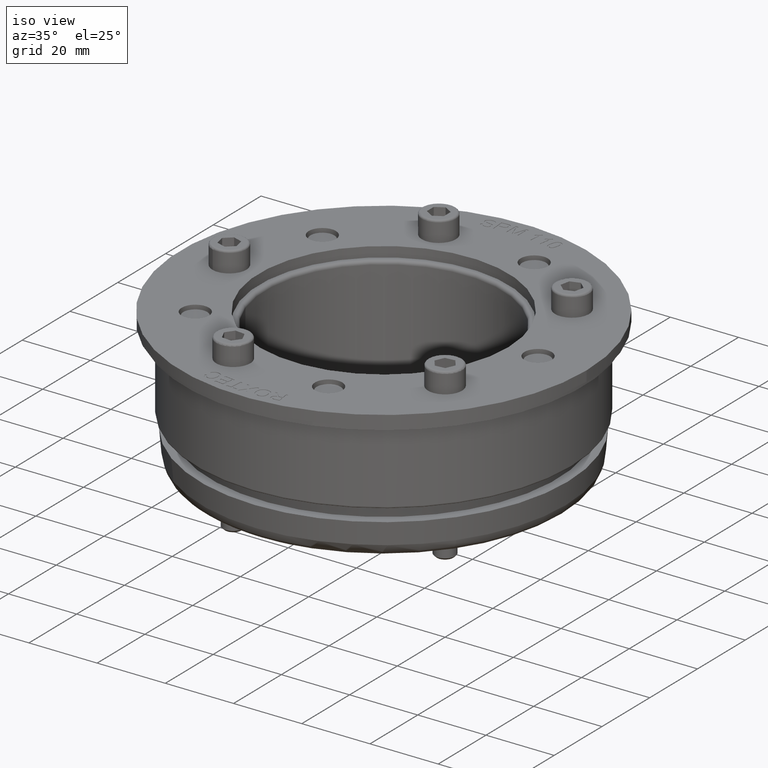
[diagram: clean part render]
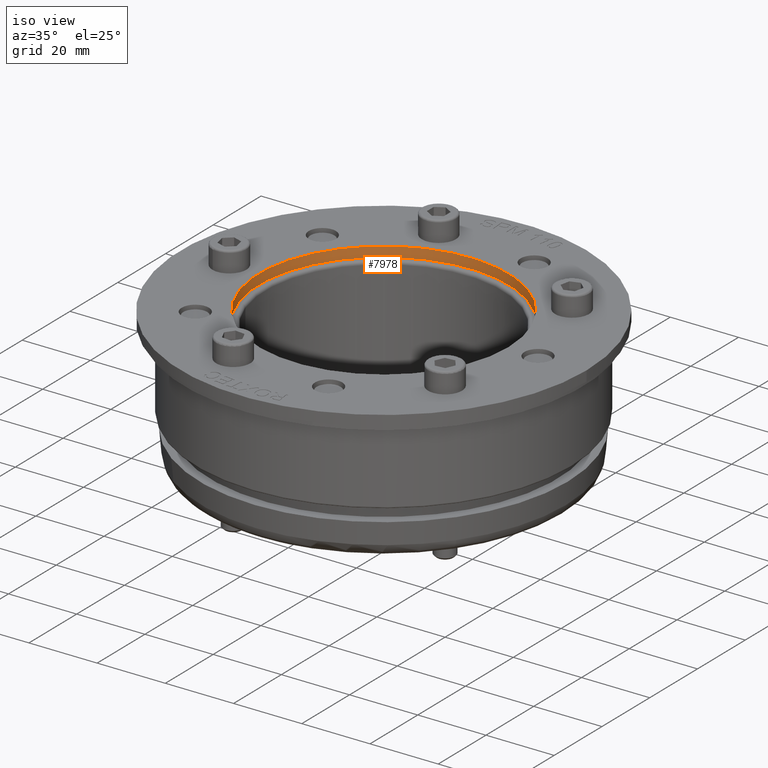
[diagram: same view with one face highlighted and labeled with its STEP entity id]
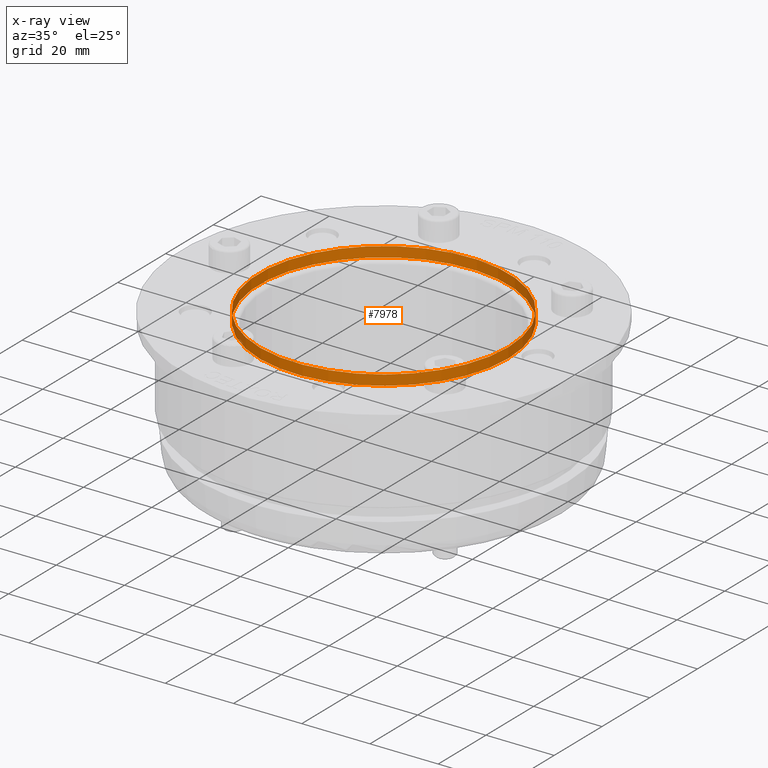
[diagram: x-ray of the same camera — body ghosted, the highlighted face saturated]
A machine part, iso view. The second image highlights one B-rep face of the part: STEP entity #7978.
The next image is the same camera in x-ray: the body ghosted, the highlighted face saturated — about 0% of this face is hidden behind the body in this view.
In plain terms, the highlighted cylindrical surface (bore or boss wall) has radius 36.55 mm, axis along (-0, 0, 1).
Its self-contained STEP definition (entity closure, byte-faithful):
#217=CYLINDRICAL_SURFACE('',#8622,36.55);
#469=CIRCLE('',#8598,36.55);
#480=CIRCLE('',#8623,36.55);
#1279=FACE_OUTER_BOUND('',#1770,.T.);
#1770=EDGE_LOOP('',(#7272,#7273,#7274,#7275));
#2429=LINE('',#14578,#3074);
#3074=VECTOR('',#10327,36.55);
#3845=VERTEX_POINT('',#14530);
#3856=VERTEX_POINT('',#14576);
#4985=EDGE_CURVE('',#3845,#3845,#469,.T.);
#5006=EDGE_CURVE('',#3856,#3856,#480,.T.);
#5007=EDGE_CURVE('',#3856,#3845,#2429,.T.);
#7272=ORIENTED_EDGE('',*,*,#5006,.F.);
#7273=ORIENTED_EDGE('',*,*,#5007,.T.);
#7274=ORIENTED_EDGE('',*,*,#4985,.F.);
#7275=ORIENTED_EDGE('',*,*,#5007,.F.);
#7978=ADVANCED_FACE('',(#1279),#217,.F.);
#8598=AXIS2_PLACEMENT_3D('',#14531,#10265,#10266);
#8622=AXIS2_PLACEMENT_3D('',#14575,#10323,#10324);
#8623=AXIS2_PLACEMENT_3D('',#14577,#10325,#10326);
#10265=DIRECTION('center_axis',(0.,-1.,0.));
#10266=DIRECTION('ref_axis',(1.,0.,0.));
#10323=DIRECTION('center_axis',(0.,1.,0.));
#10324=DIRECTION('ref_axis',(1.,0.,0.));
#10325=DIRECTION('center_axis',(0.,1.,0.));
#10326=DIRECTION('ref_axis',(1.,0.,0.));
#10327=DIRECTION('',(0.,1.,0.));
#14530=CARTESIAN_POINT('',(-36.55,3.,4.47608405088358E-15));
#14531=CARTESIAN_POINT('Origin',(0.,3.,0.));
#14575=CARTESIAN_POINT('Origin',(0.,0.,0.));
#14576=CARTESIAN_POINT('',(-36.55,0.,4.47608405088358E-15));
#14577=CARTESIAN_POINT('Origin',(0.,0.,0.));
#14578=CARTESIAN_POINT('',(-36.55,0.,4.47608405088358E-15));